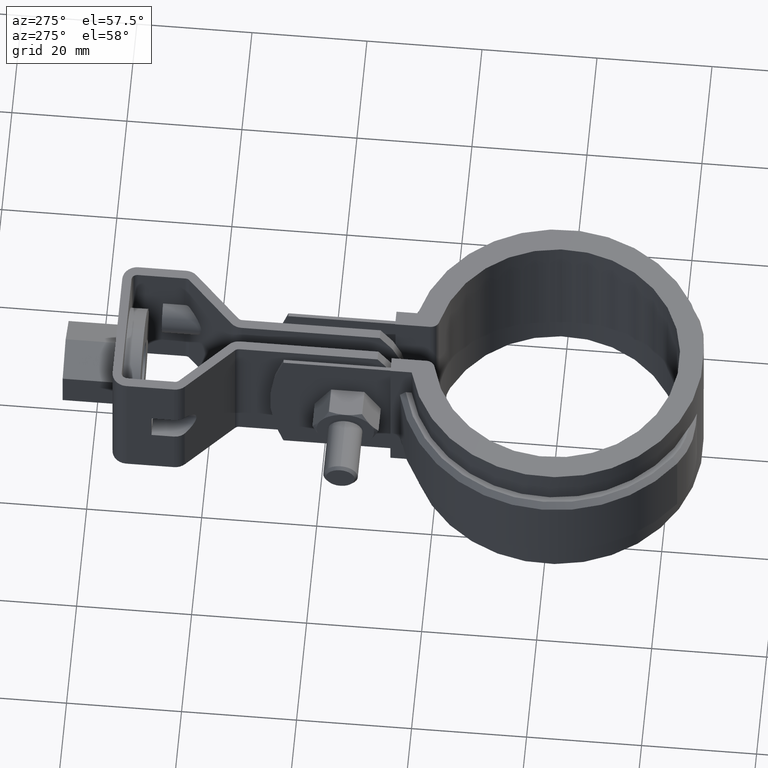
[diagram: clean part render]
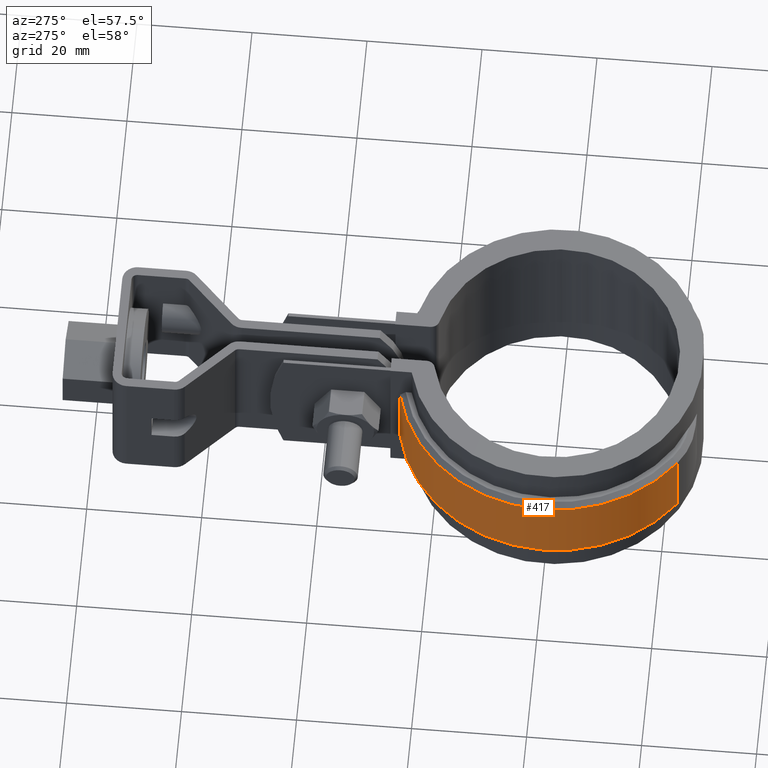
[diagram: same view with one face highlighted and labeled with its STEP entity id]
A machine part, auxiliary view. The second image highlights one B-rep face of the part: STEP entity #417.
In plain terms, the highlighted cylindrical surface (partial cylindrical patch) has radius 27.445 mm, axis along (0, 0, -1).
Its self-contained STEP definition (entity closure, byte-faithful):
#417 = ADVANCED_FACE( '', ( #772 ), #773, .T. );
#772 = FACE_OUTER_BOUND( '', #1658, .T. );
#773 = CYLINDRICAL_SURFACE( '', #1659, 27.4450000000000 );
#1658 = EDGE_LOOP( '', ( #4014, #4015, #4016, #4017 ) );
#1659 = AXIS2_PLACEMENT_3D( '', #4018, #4019, #4020 );
#4014 = ORIENTED_EDGE( '', *, *, #5549, .F. );
#4015 = ORIENTED_EDGE( '', *, *, #5560, .T. );
#4016 = ORIENTED_EDGE( '', *, *, #5561, .T. );
#4017 = ORIENTED_EDGE( '', *, *, #5562, .T. );
#4018 = CARTESIAN_POINT( '', ( -8.67361737988404E-016, -3.46944695195361E-015, -20.0000000000000 ) );
#4019 = DIRECTION( '', ( 0.000000000000000, 0.000000000000000, -1.00000000000000 ) );
#4020 = DIRECTION( '', ( 0.213196982952784, 0.977009235606210, 0.000000000000000 ) );
#5549 = EDGE_CURVE( '', #6447, #6449, #6450, .T. );
#5560 = EDGE_CURVE( '', #6447, #6456, #6467, .F. );
#5561 = EDGE_CURVE( '', #6456, #6468, #6469, .T. );
#5562 = EDGE_CURVE( '', #6468, #6449, #6470, .T. );
#6447 = VERTEX_POINT( '', #10102 );
#6449 = VERTEX_POINT( '', #10107 );
#6450 = LINE( '', #10108, #10109 );
#6456 = VERTEX_POINT( '', #10120 );
#6467 = CIRCLE( '', #10135, 27.4450000000000 );
#6468 = VERTEX_POINT( '', #10136 );
#6469 = LINE( '', #10137, #10138 );
#6470 = CIRCLE( '', #10139, 27.4450000000000 );
#10102 = CARTESIAN_POINT( '', ( -6.10000000000003, 26.7585131313382, -19.0000000000000 ) );
#10107 = CARTESIAN_POINT( '', ( -6.10000000000003, 26.7585131313382, -6.00000000000000 ) );
#10108 = CARTESIAN_POINT( '', ( -6.10000000000003, 26.7585131313382, -20.0000000000000 ) );
#10109 = VECTOR( '', #11191, 1000.00000000000 );
#10120 = CARTESIAN_POINT( '', ( -15.9691081303572, -22.3207439508848, -19.0000000000000 ) );
#10135 = AXIS2_PLACEMENT_3D( '', #11207, #11208, #11209 );
#10136 = CARTESIAN_POINT( '', ( -15.9691081303572, -22.3207439508848, -6.00000000000000 ) );
#10137 = CARTESIAN_POINT( '', ( -15.9691081303572, -22.3207439508848, -20.0000000000000 ) );
#10138 = VECTOR( '', #11210, 1000.00000000000 );
#10139 = AXIS2_PLACEMENT_3D( '', #11211, #11212, #11213 );
#11191 = DIRECTION( '', ( 0.000000000000000, 0.000000000000000, 1.00000000000000 ) );
#11207 = CARTESIAN_POINT( '', ( -8.67361737988404E-016, -3.46944695195361E-015, -19.0000000000000 ) );
#11208 = DIRECTION( '', ( 0.000000000000000, 0.000000000000000, -1.00000000000000 ) );
#11209 = DIRECTION( '', ( -1.00000000000000, 0.000000000000000, 0.000000000000000 ) );
#11210 = DIRECTION( '', ( 0.000000000000000, 0.000000000000000, 1.00000000000000 ) );
#11211 = CARTESIAN_POINT( '', ( -8.67361737988404E-016, -3.46944695195361E-015, -6.00000000000000 ) );
#11212 = DIRECTION( '', ( 0.000000000000000, 0.000000000000000, -1.00000000000000 ) );
#11213 = DIRECTION( '', ( -1.00000000000000, 0.000000000000000, 0.000000000000000 ) );